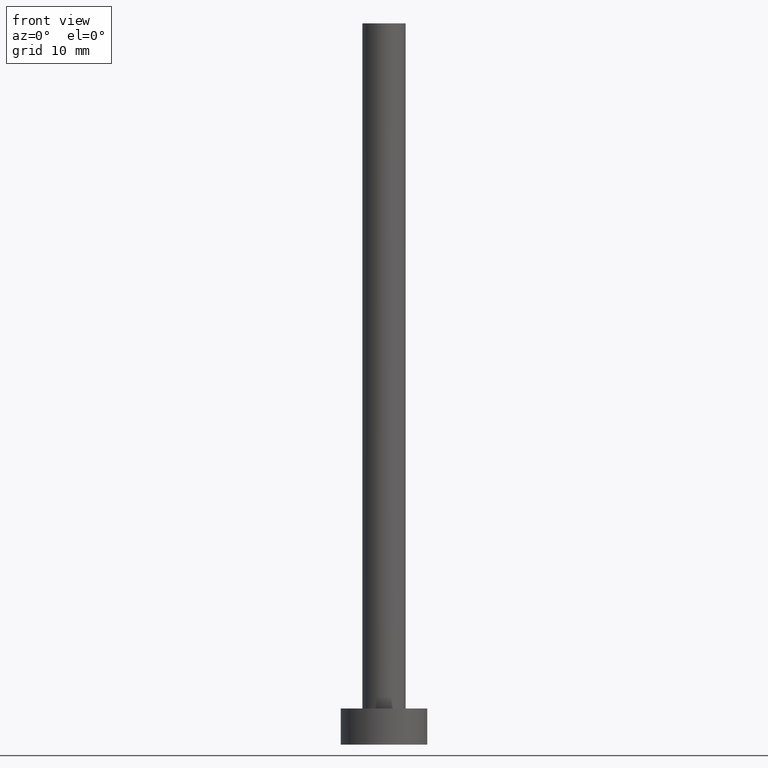
[diagram: clean part render]
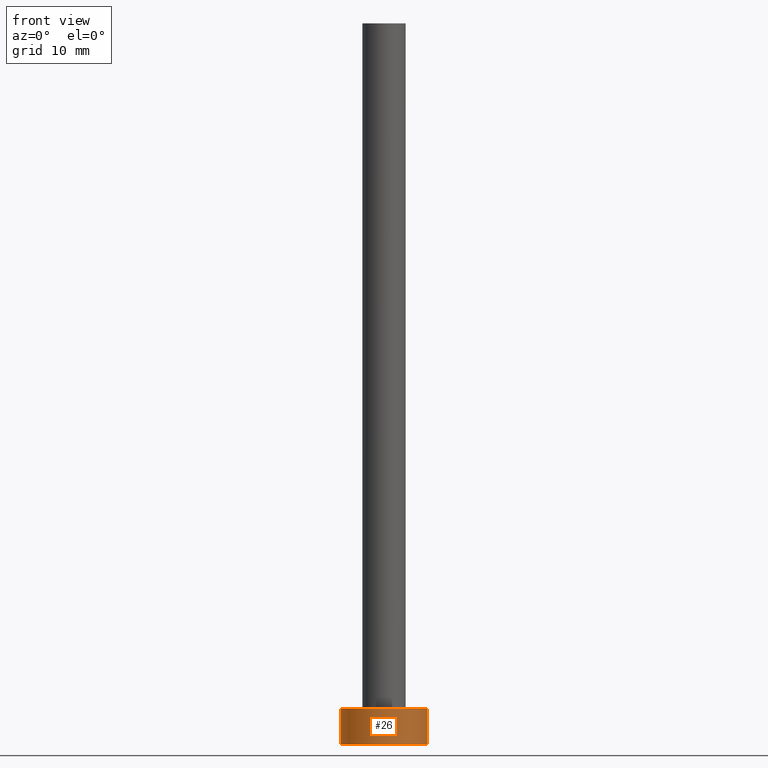
[diagram: same view with one face highlighted and labeled with its STEP entity id]
A machine part, front view. The second image highlights one B-rep face of the part: STEP entity #26.
In plain terms, the highlighted cylindrical surface (partial cylindrical patch) has radius 6 mm, axis along (-0, -0, -1).
Its self-contained STEP definition (entity closure, byte-faithful):
#4 = DIRECTION ( 'NONE',  ( 1.000000000000000000, 0.000000000000000000, 0.000000000000000000 ) ) ;
#13 = ORIENTED_EDGE ( 'NONE', *, *, #91, .T. ) ;
#15 = DIRECTION ( 'NONE',  ( -0.000000000000000000, -0.000000000000000000, -1.000000000000000000 ) ) ;
#16 = CARTESIAN_POINT ( 'NONE',  ( 6.000000000000000888, 7.347880794884120722E-16, 5.000000000000000000 ) ) ;
#26 = ADVANCED_FACE ( 'NONE', ( #39 ), #225, .T. ) ;
#29 = CARTESIAN_POINT ( 'NONE',  ( 0.000000000000000000, 0.000000000000000000, 0.000000000000000000 ) ) ;
#33 = VERTEX_POINT ( 'NONE', #35 ) ;
#35 = CARTESIAN_POINT ( 'NONE',  ( 6.000000000000000888, 7.347880794884120722E-16, 5.000000000000000000 ) ) ;
#36 = CARTESIAN_POINT ( 'NONE',  ( 6.000000000000000888, 7.347880794884120722E-16, 0.000000000000000000 ) ) ;
#39 = FACE_OUTER_BOUND ( 'NONE', #119, .T. ) ;
#44 = EDGE_CURVE ( 'NONE', #188, #33, #125, .T. ) ;
#50 = AXIS2_PLACEMENT_3D ( 'NONE', #29, #163, #240 ) ;
#53 = CARTESIAN_POINT ( 'NONE',  ( 0.000000000000000000, 0.000000000000000000, 5.000000000000000000 ) ) ;
#57 = ORIENTED_EDGE ( 'NONE', *, *, #44, .F. ) ;
#70 = DIRECTION ( 'NONE',  ( -0.000000000000000000, -0.000000000000000000, -1.000000000000000000 ) ) ;
#72 = LINE ( 'NONE', #200, #152 ) ;
#80 = CARTESIAN_POINT ( 'NONE',  ( 0.000000000000000000, 0.000000000000000000, 5.000000000000000000 ) ) ;
#86 = DIRECTION ( 'NONE',  ( 0.000000000000000000, 0.000000000000000000, 1.000000000000000000 ) ) ;
#91 = EDGE_CURVE ( 'NONE', #188, #118, #72, .T. ) ;
#98 = ORIENTED_EDGE ( 'NONE', *, *, #108, .T. ) ;
#105 = AXIS2_PLACEMENT_3D ( 'NONE', #53, #15, #206 ) ;
#108 = EDGE_CURVE ( 'NONE', #118, #172, #159, .T. ) ;
#118 = VERTEX_POINT ( 'NONE', #221 ) ;
#119 = EDGE_LOOP ( 'NONE', ( #211, #57, #13, #98 ) ) ;
#120 = LINE ( 'NONE', #16, #155 ) ;
#125 = CIRCLE ( 'NONE', #219, 6.000000000000000888 ) ;
#126 = EDGE_CURVE ( 'NONE', #33, #172, #120, .T. ) ;
#149 = DIRECTION ( 'NONE',  ( -0.000000000000000000, -0.000000000000000000, -1.000000000000000000 ) ) ;
#152 = VECTOR ( 'NONE', #70, 1000.000000000000000 ) ;
#155 = VECTOR ( 'NONE', #149, 1000.000000000000000 ) ;
#159 = CIRCLE ( 'NONE', #50, 6.000000000000000888 ) ;
#163 = DIRECTION ( 'NONE',  ( 0.000000000000000000, 0.000000000000000000, 1.000000000000000000 ) ) ;
#172 = VERTEX_POINT ( 'NONE', #36 ) ;
#188 = VERTEX_POINT ( 'NONE', #248 ) ;
#200 = CARTESIAN_POINT ( 'NONE',  ( -6.000000000000000888, 0.000000000000000000, 5.000000000000000000 ) ) ;
#206 = DIRECTION ( 'NONE',  ( -1.000000000000000000, 0.000000000000000000, 0.000000000000000000 ) ) ;
#211 = ORIENTED_EDGE ( 'NONE', *, *, #126, .F. ) ;
#219 = AXIS2_PLACEMENT_3D ( 'NONE', #80, #86, #4 ) ;
#221 = CARTESIAN_POINT ( 'NONE',  ( -6.000000000000000888, 0.000000000000000000, 0.000000000000000000 ) ) ;
#225 = CYLINDRICAL_SURFACE ( 'NONE', #105, 6.000000000000000888 ) ;
#240 = DIRECTION ( 'NONE',  ( 1.000000000000000000, 0.000000000000000000, 0.000000000000000000 ) ) ;
#248 = CARTESIAN_POINT ( 'NONE',  ( -6.000000000000000888, 0.000000000000000000, 5.000000000000000000 ) ) ;